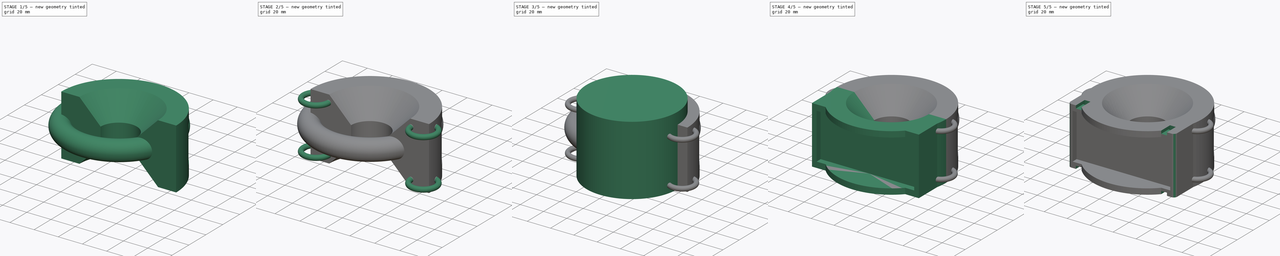
[diagram: build sequence overview — one tinted view per stage of 5, left to right]
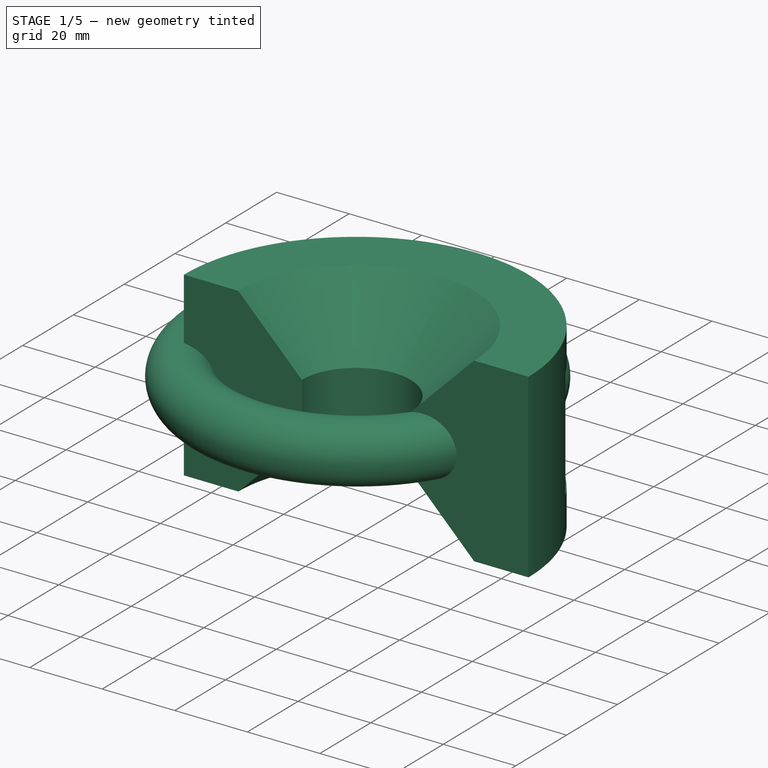
[diagram: stage 1 of 5 — iso view after this stage's code; geometry added in this stage tinted green]
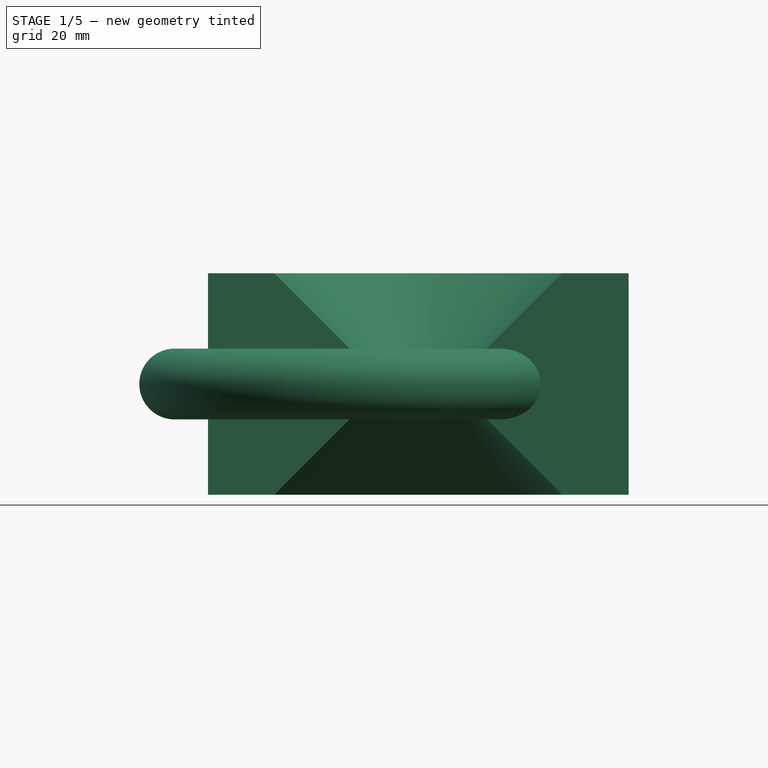
[diagram: stage 1 of 5 — front view after this stage's code; geometry added in this stage tinted green]
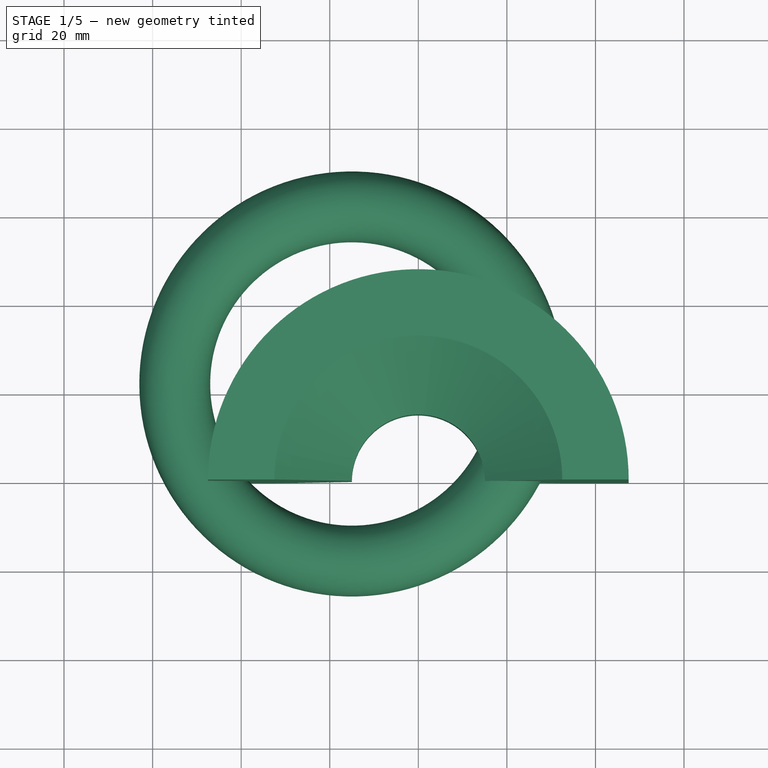
[diagram: stage 1 of 5 — top view after this stage's code; geometry added in this stage tinted green]
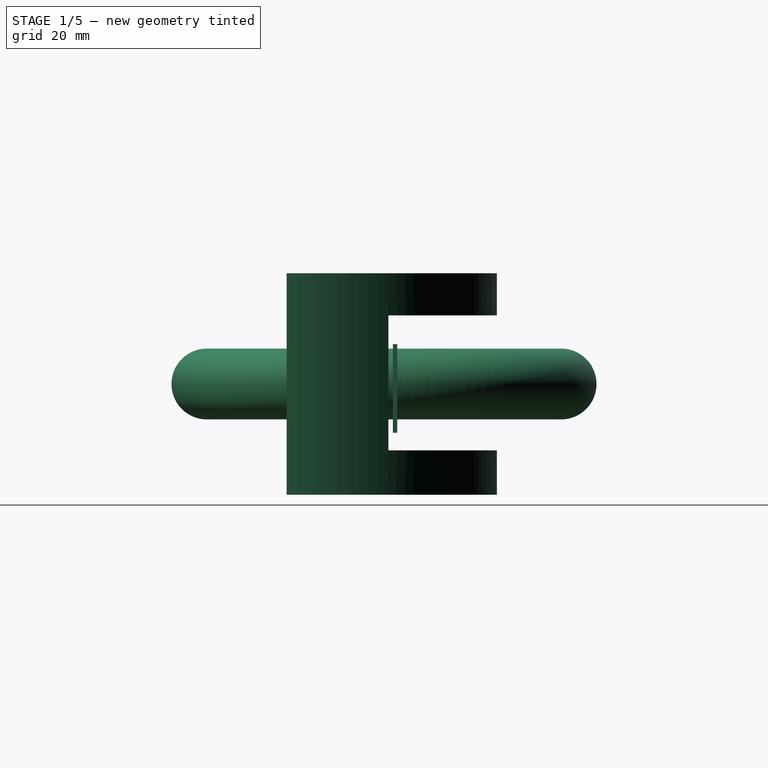
[diagram: stage 1 of 5 — right view after this stage's code; geometry added in this stage tinted green]
FCSTD DOCUMENT  (FreeCAD 0.16R6692 (Git))
Label: sujeccionV2
License: All rights reserved
LicenseURL: http://en.wikipedia.org/wiki/All_rights_reserved
objects: Sketcher::SketchObject×11, Part::Extrusion×6, Part::Cut×5, Part::Feature×3, Part::MultiFuse×3, Part::Torus×3, PartDesign::Revolution×2, PartDesign::Fillet×2, App::DocumentObjectGroup×2, PartDesign::Pad×1, Part::FeaturePython×1, Part::Box×1
note: 41 computed .brp shape members not serialized (recipe doc carries the construction recipe); baked Part::Feature solids carry a one-line shape summary decoded from their .brp

FEATURE [Sketcher::SketchObject] Sketch001
  Placement = pos=(0,0,0) rot=(1,0,0;1.5708rad)
  sketch-geometry (7):
    g0: LineSegment StartX=32.5 StartY=50 StartZ=0 EndX=15 EndY=32.5 EndZ=0
    g1: LineSegment StartX=15 StartY=32.5 StartZ=0 EndX=15 EndY=17.5 EndZ=0
    g2: LineSegment StartX=15 StartY=17.5 StartZ=0 EndX=32.5 EndY=0 EndZ=0
    g3: LineSegment StartX=32.5 StartY=0 StartZ=0 EndX=47.5 EndY=0 EndZ=0
    g4: LineSegment StartX=47.5 StartY=0 StartZ=0 EndX=47.5 EndY=50 EndZ=0
    g5: LineSegment StartX=47.5 StartY=50 StartZ=0 EndX=32.5 EndY=50 EndZ=0
    g6: LineSegment [constr] StartX=32.5 StartY=50 StartZ=0 EndX=32.5 EndY=0 EndZ=0
  constraints (20):
    c: Coincident(g0,g1)
    c: Vertical(g1)
    c: Coincident(g1,g2)
    c: Coincident(g2,g3)
    c: Horizontal(g3)
    c: Coincident(g3,g4)
    c: Vertical(g4)
    c: Coincident(g4,g5)
    c: Coincident(g5,g0)
    c: Horizontal(g5)
    c: Coincident(g6,g0)
    c: Coincident(g6,g2)
    c: Vertical(g6)
    c: Equal(g2,g0)
    c: PointOnObject(g3,g-1)
    c: Angle(g-1,g2) = 2.35619
    c: DistanceX(g-2,g1) = 15
    c: Distance(g1) = 15
    c: Distance(g4) = 50
    c: Distance(g5) = 15
FEATURE [Sketcher::SketchObject] Sketch002
  Placement = pos=(0,0,0) rot=(1,0,0;1.5708rad)
  sketch-geometry (7):
    g0: LineSegment StartX=32.5 StartY=50 StartZ=0 EndX=15 EndY=32.5 EndZ=0
    g1: LineSegment StartX=15 StartY=32.5 StartZ=0 EndX=15 EndY=17.5 EndZ=0
    g2: LineSegment StartX=15 StartY=17.5 StartZ=0 EndX=32.5 EndY=0 EndZ=0
    g3: LineSegment StartX=32.5 StartY=0 StartZ=0 EndX=47.5 EndY=0 EndZ=0
    g4: LineSegment StartX=47.5 StartY=0 StartZ=0 EndX=47.5 EndY=50 EndZ=0
    g5: LineSegment StartX=47.5 StartY=50 StartZ=0 EndX=32.5 EndY=50 EndZ=0
    g6: LineSegment [constr] StartX=32.5 StartY=50 StartZ=0 EndX=32.5 EndY=0 EndZ=0
  constraints (20):
    c: Coincident(g0,g1)
    c: Vertical(g1)
    c: Coincident(g1,g2)
    c: Coincident(g2,g3)
    c: Horizontal(g3)
    c: Coincident(g3,g4)
    c: Vertical(g4)
    c: Coincident(g4,g5)
    c: Coincident(g5,g0)
    c: Horizontal(g5)
    c: Coincident(g6,g0)
    c: Coincident(g6,g2)
    c: Vertical(g6)
    c: Equal(g2,g0)
    c: PointOnObject(g3,g-1)
    c: Angle(g-1,g2) = 2.35619
    c: DistanceX(g-2,g1) = 15
    c: Distance(g1) = 15
    c: Distance(g4) = 50
    c: Distance(g5) = 15
FEATURE [PartDesign::Revolution] Revolution001
  Angle = 180
  Axis = (0,0,1)
  Base = (0,0,0)
  Placement = pos=(0,0,0) rot=(1,0,0;1.5708rad)
  ReferenceAxis = -> Sketch002 [V_Axis]
  Sketch = -> Sketch002
FEATURE [App::DocumentObjectGroup] Group
  Group = -> [Fillet,Sketch001,Extrude,Cut001,Cut002,Cut003,Fillet001]
FEATURE [Sketcher::SketchObject] Sketch009
  ExternalGeometry = -> [Solid]
  Placement = pos=(22,23,10) rot=(-0.57735,0.57735,0.57735;2.0944rad)
  Support = -> Solid [Face147]
  sketch-geometry (6):
    g0: LineSegment StartX=0 StartY=120.593 StartZ=0 EndX=-30.5 EndY=120.593 EndZ=0
    g1: LineSegment StartX=-30.5 StartY=120.593 StartZ=0 EndX=-30.5 EndY=-66.5926 EndZ=0
    g2: LineSegment StartX=-30.5 StartY=-66.5926 StartZ=0 EndX=0 EndY=-66.5926 EndZ=0
    g3: LineSegment StartX=0 StartY=-66.5926 StartZ=0 EndX=0 EndY=120.593 EndZ=0
    g4: LineSegment [constr] StartX=0 StartY=-66.5926 StartZ=0 EndX=-30.5 EndY=4 EndZ=0
    g5: LineSegment [constr] StartX=0 StartY=120.593 StartZ=0 EndX=-30.5 EndY=50 EndZ=0
  constraints (15):
    c: Coincident(g0,g1)
    c: Coincident(g1,g2)
    c: Coincident(g2,g3)
    c: Coincident(g3,g0)
    c: Horizontal(g0)
    c: Horizontal(g2)
    c: Vertical(g1)
    c: Vertical(g3)
    c: PointOnObject(g-4,g1)
    c: PointOnObject(g-3,g3)
    c: Coincident(g4,g2)
    c: Coincident(g4,g-4)
    c: Coincident(g5,g0)
    c: Coincident(g5,g-4)
    c: Equal(g5,g4)
FEATURE [Part::Extrusion] Extrude005
  Base = -> Sketch009
  Dir = (0,40,0)
  Solid = true
FEATURE [Part::Cut] Cut004
  Base = -> Revolution001
  Tool = -> Extrude005
FEATURE [Part::Torus] Torus002
  Angle1 = -180
  Angle2 = 180
  Angle3 = 360
  Placement = pos=(-15,22,25) rot=(0,0,1;0rad)
  Radius1 = 40
  Radius2 = 8
FEATURE [Part::Box] Box  label="Cube"
  Height = 20
  Length = 16
  Placement = pos=(23,24,14) rot=(0,0,1;0rad)
  Width = 1
FEATURE [Sketcher::SketchObject] Sketch010
  ExternalGeometry = -> [Cut004]
  Placement = pos=(0,23,0) rot=(0,0.707107,0.707107;3.14159rad)
  Support = -> Cut004 [Face10]
  sketch-geometry (8):
    g0: Circle [constr] CenterX=38.3102 CenterY=37.25 CenterZ=0 NormalX=0 NormalY=0 NormalZ=1 Radius=3.25
    g1: Circle [constr] CenterX=-38.3102 CenterY=13.25 CenterZ=0 NormalX=0 NormalY=0 NormalZ=1 Radius=3.25
    g2: Circle [constr] CenterX=-38.3102 CenterY=37.25 CenterZ=0 NormalX=0 NormalY=0 NormalZ=1 Radius=3.25
    g3: Circle [constr] CenterX=38.3102 CenterY=13.25 CenterZ=0 NormalX=0 NormalY=0 NormalZ=1 Radius=3.25
    g4: LineSegment [constr] StartX=-38.3102 StartY=37.25 StartZ=0 EndX=38.3102 EndY=37.25 EndZ=0
    g5: LineSegment [constr] StartX=38.3102 StartY=37.25 StartZ=0 EndX=38.3102 EndY=13.25 EndZ=0
    g6: LineSegment [constr] StartX=38.3102 StartY=13.25 StartZ=0 EndX=-38.3102 EndY=13.25 EndZ=0
    g7: LineSegment [constr] StartX=-38.3102 StartY=13.25 StartZ=0 EndX=-38.3102 EndY=37.25 EndZ=0
  constraints (20):
    c: Coincident(g4,g5)
    c: Coincident(g5,g6)
    c: Coincident(g6,g7)
    c: Coincident(g7,g4)
    c: Horizontal(g4)
    c: Horizontal(g6)
    c: Vertical(g5)
    c: Vertical(g7)
    c: Coincident(g4,g2)
    c: Coincident(g5,g3)
    c: Coincident(g0,g4)
    c: Coincident(g1,g6)
    c: Radius(g2) = 3.25
    c: Equal(g2,g1)
    c: Equal(g2,g0)
    c: Equal(g2,g3)
    c: Tangent(g2,g-5)
    c: Tangent(g2,g-3)
    c: Tangent(g3,g-4)
    c: Tangent(g3,g-6)
FEATURE [App::DocumentObjectGroup] Group001
  Group = -> [Cut004,Sketch010]
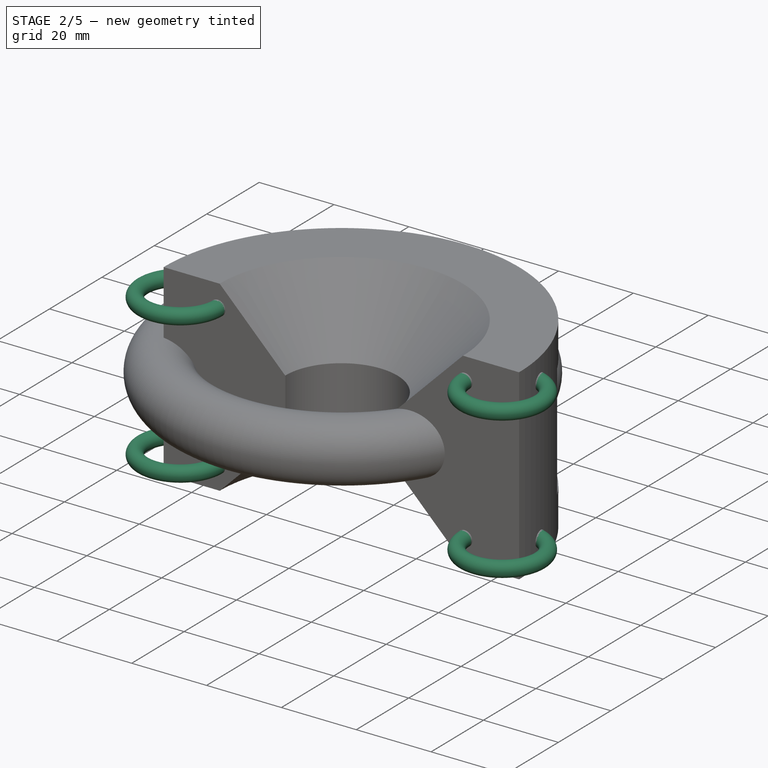
[diagram: stage 2 of 5 — iso view after this stage's code; geometry added in this stage tinted green]
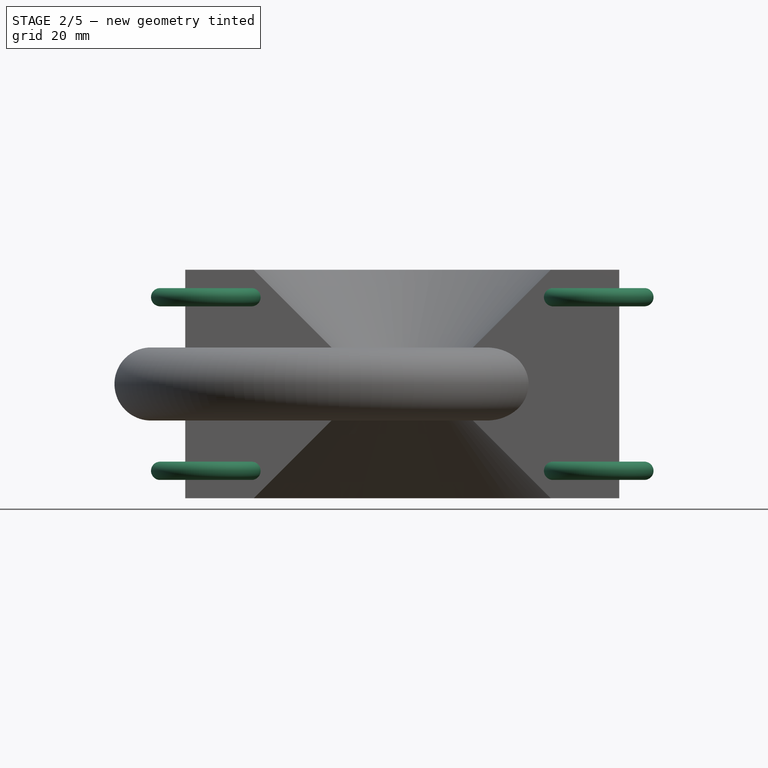
[diagram: stage 2 of 5 — front view after this stage's code; geometry added in this stage tinted green]
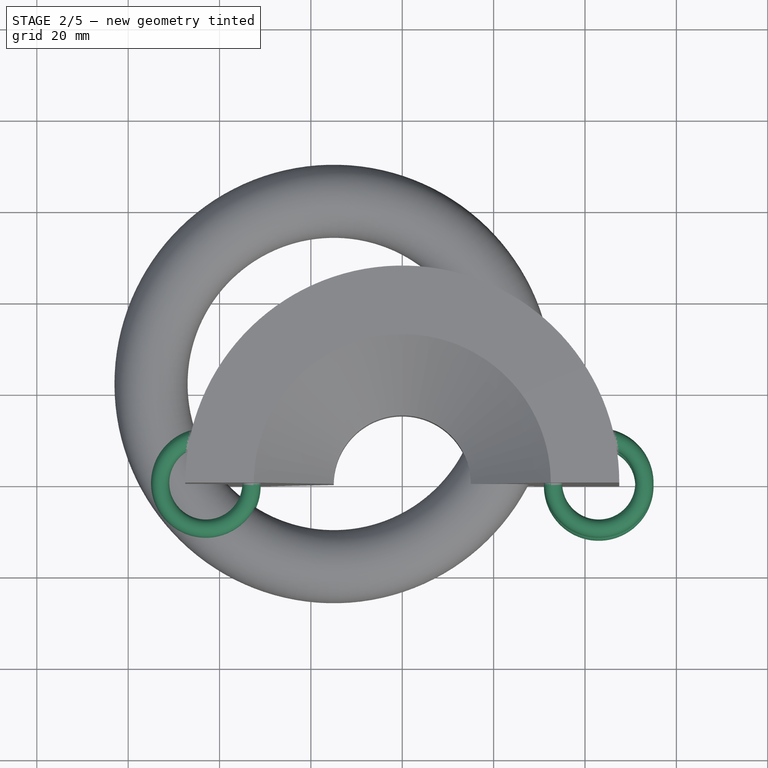
[diagram: stage 2 of 5 — top view after this stage's code; geometry added in this stage tinted green]
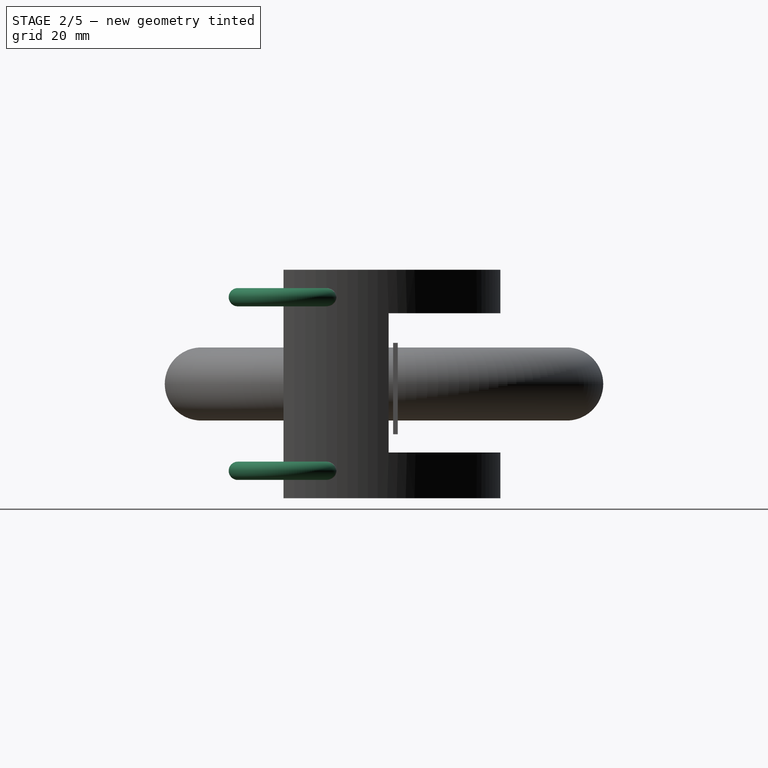
[diagram: stage 2 of 5 — right view after this stage's code; geometry added in this stage tinted green]
FEATURE [Part::Torus] Torus
  Angle1 = -180
  Angle2 = 180
  Angle3 = 360
  Placement = pos=(-43,0,6) rot=(0,0,1;0rad)
  Radius1 = 10
  Radius2 = 2
FEATURE [Part::Torus] Torus001
  Angle1 = -180
  Angle2 = 180
  Angle3 = 360
  Placement = pos=(-43,0,44) rot=(0,0,1;0rad)
  Radius1 = 10
  Radius2 = 2
FEATURE [Part::MultiFuse] Fusion001
  Shapes = -> [Torus,Torus001]
FEATURE [Part::FeaturePython] Clone  label="Clone of Fusion001"  # Draft clone (typed FeaturePython)
  Objects = -> [Fusion001]
  Placement = pos=(86,0,0) rot=(0,0,1;0rad)
  Scale = (1,1,1)
FEATURE [Part::MultiFuse] Fusion002
  Shapes = -> [Clone,Fusion001]
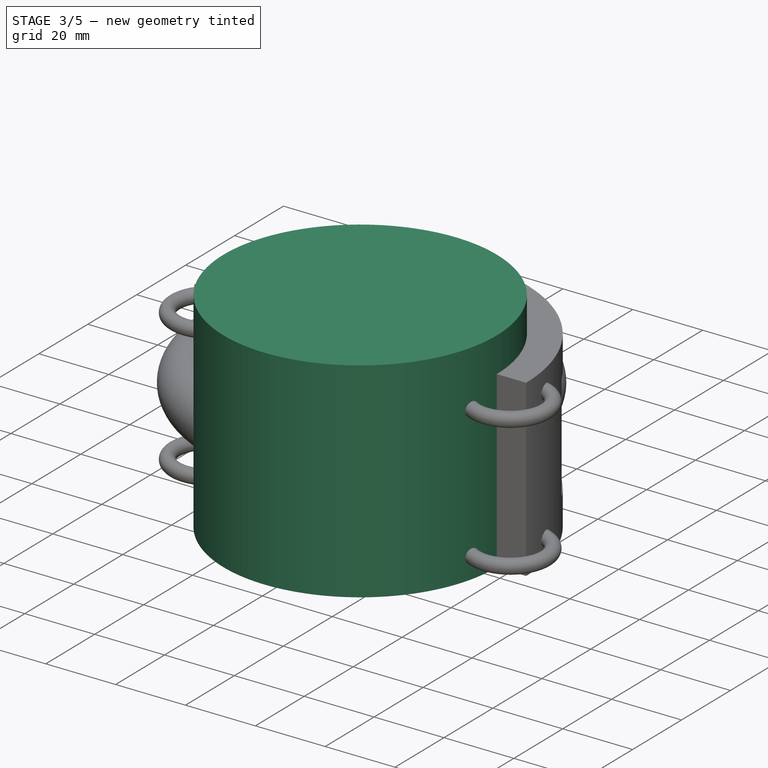
[diagram: stage 3 of 5 — iso view after this stage's code; geometry added in this stage tinted green]
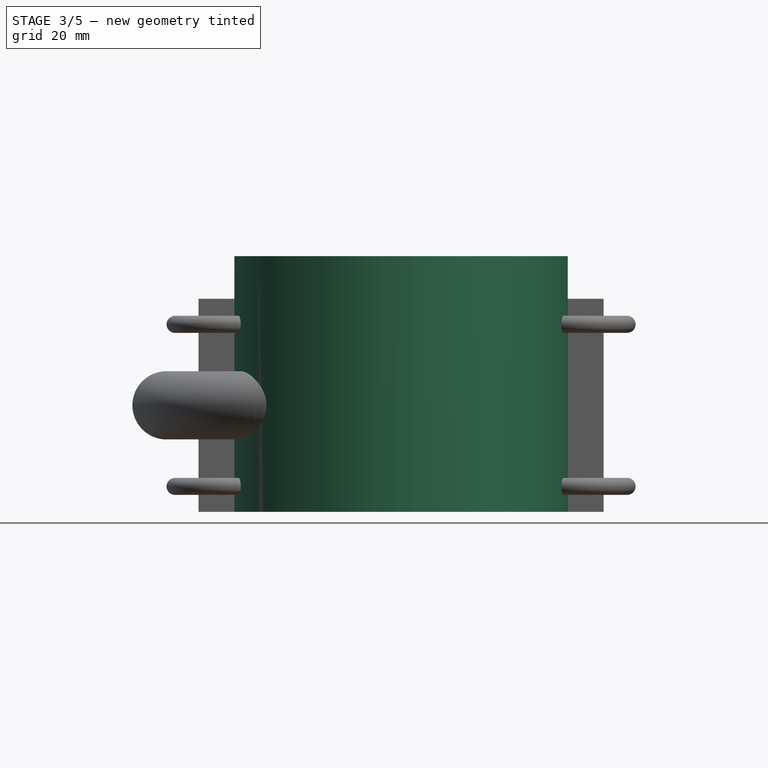
[diagram: stage 3 of 5 — front view after this stage's code; geometry added in this stage tinted green]
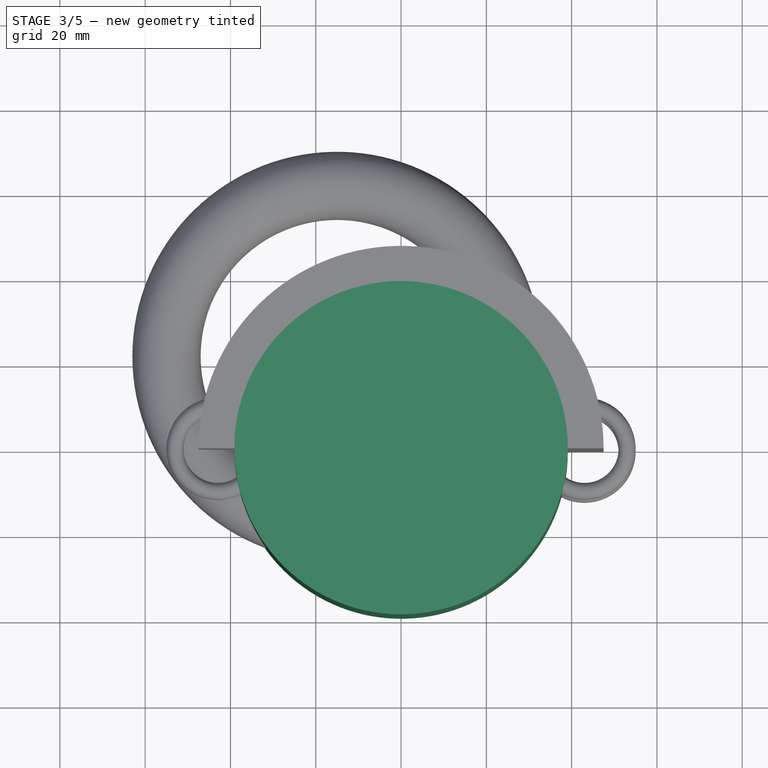
[diagram: stage 3 of 5 — top view after this stage's code; geometry added in this stage tinted green]
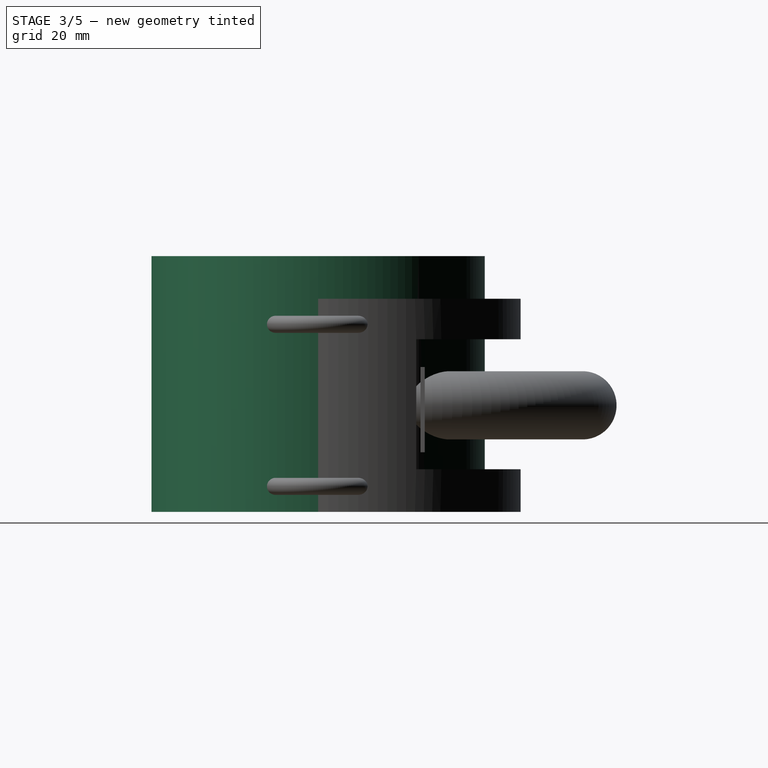
[diagram: stage 3 of 5 — right view after this stage's code; geometry added in this stage tinted green]
FEATURE [Part::Feature] Solid  label="ESP-Holder"
  Placement = pos=(22,23,10) rot=(0,1,0;4.71239rad)
  shape: bbox 54 x 8 x 30.5 mm, 488 faces (baked)
FEATURE [PartDesign::Fillet] Fillet  label="Powerbank"
  Placement = pos=(-42.5,-49,45) rot=(0,1,0;1.5708rad)
  Radius = 3
FEATURE [Sketcher::SketchObject] Sketch003
  ExternalGeometry = -> [Fillet]
  Placement = pos=(-42.5,-27.5,45) rot=(0.57735,0.57735,0.57735;4.18879rad)
  Support = -> Fillet [Face7]
  sketch-geometry (17):
    g0: LineSegment [constr] StartX=-40 StartY=64 StartZ=0 EndX=0 EndY=64 EndZ=0
    g1: LineSegment StartX=0 StartY=64 StartZ=0 EndX=5 EndY=64 EndZ=0
    g2: LineSegment StartX=5 StartY=64 StartZ=0 EndX=5 EndY=89 EndZ=0
    g3: LineSegment StartX=5 StartY=89 StartZ=0 EndX=-45 EndY=89 EndZ=0
    g4: LineSegment StartX=-45 StartY=89 StartZ=0 EndX=-45 EndY=64 EndZ=0
    g5: LineSegment StartX=-45 StartY=64 StartZ=0 EndX=-40 EndY=64 EndZ=0
    g6: LineSegment StartX=-40 StartY=64 StartZ=0 EndX=-40 EndY=85 EndZ=0
    g7: LineSegment StartX=-40 StartY=85 StartZ=0 EndX=0 EndY=85 EndZ=0
    g8: LineSegment StartX=0 StartY=85 StartZ=0 EndX=0 EndY=64 EndZ=0
    g9: LineSegment StartX=0 StartY=21 StartZ=0 EndX=5 EndY=21 EndZ=0
    g10: LineSegment StartX=5 StartY=21 StartZ=0 EndX=5 EndY=-4 EndZ=0
    g11: LineSegment StartX=5 StartY=-4 StartZ=0 EndX=-45 EndY=-4 EndZ=0
    g12: LineSegment StartX=-45 StartY=-4 StartZ=0 EndX=-45 EndY=21 EndZ=0
    g13: LineSegment StartX=-45 StartY=21 StartZ=0 EndX=-40 EndY=21 EndZ=0
    g14: LineSegment StartX=-40 StartY=21 StartZ=0 EndX=-40 EndY=0 EndZ=0
    g15: LineSegment StartX=-40 StartY=0 StartZ=0 EndX=0 EndY=0 EndZ=0
    g16: LineSegment StartX=0 StartY=0 StartZ=0 EndX=0 EndY=21 EndZ=0
  constraints (46):
    c: Horizontal(g0)
    c: Coincident(g0,g1)
    c: Horizontal(g1)
    c: Coincident(g1,g2)
    c: Vertical(g2)
    c: Coincident(g2,g3)
    c: Horizontal(g3)
    c: Coincident(g3,g4)
    c: Vertical(g4)
    c: Coincident(g4,g5)
    c: Coincident(g5,g0)
    c: Coincident(g0,g6)
    c: Coincident(g6,g7)
    c: Coincident(g7,g8)
    c: Coincident(g8,g0)
    c: Horizontal(g5)
    c: Equal(g5,g1)
    c: Horizontal(g9)
    c: Coincident(g9,g10)
    c: Vertical(g10)
    c: Coincident(g10,g11)
    c: Horizontal(g11)
    c: Coincident(g11,g12)
    c: Vertical(g12)
    c: Coincident(g12,g13)
    c: Horizontal(g13)
    c: Coincident(g13,g14)
    c: Vertical(g14)
    c: Coincident(g14,g15)
    c: Coincident(g15,g-1)
    c: Coincident(g15,g16)
    c: Coincident(g16,g9)
    c: Vertical(g16)
    c: Equal(g13,g9)
    c: Equal(g2,g10)
    c: Equal(g8,g16)
    c: Coincident(g14,g-7)
    c: Coincident(g6,g-5)
    c: Coincident(g7,g-6)
    c: Equal(g14,g16)
    c: Equal(g3,g11)
    c: PointOnObject(g0,g-5)
    c: PointOnObject(g0,g-6)
    c: Distance(g-4,g11) = 4
    c: Distance(g11) = 50
    c: Distance(g10) = 25
FEATURE [Part::Extrusion] Extrude
  Base = -> Sketch003
  Dir = (0,-5,0)
  Solid = true
FEATURE [Sketcher::SketchObject] Sketch004
  ExternalGeometry = -> [Extrude]
  Placement = pos=(0,-27.5,0) rot=(0,0.707107,0.707107;3.14159rad)
  Support = -> Extrude [Face9]
  sketch-geometry (4):
    g0: LineSegment StartX=46.5 StartY=50 StartZ=0 EndX=-46.5 EndY=50 EndZ=0
    g1: LineSegment StartX=-46.5 StartY=50 StartZ=0 EndX=-46.5 EndY=0 EndZ=0
    g2: LineSegment StartX=-46.5 StartY=0 StartZ=0 EndX=46.5 EndY=0 EndZ=0
    g3: LineSegment StartX=46.5 StartY=0 StartZ=0 EndX=46.5 EndY=50 EndZ=0
  constraints (10):
    c: Coincident(g0,g1)
    c: Coincident(g1,g2)
    c: Coincident(g2,g3)
    c: Coincident(g3,g0)
    c: Horizontal(g0)
    c: Horizontal(g2)
    c: Vertical(g1)
    c: Vertical(g3)
    c: Coincident(g0,g-4)
    c: Coincident(g1,g-3)
FEATURE [PartDesign::Pad] Pad
  Length = 20
  Length2 = 100
  Sketch = -> Sketch004
  Type = 0
FEATURE [Sketcher::SketchObject] Sketch005
  Placement = pos=(0,0,0) rot=(1,0,0;3.14159rad)
  Support = -> Pad [Face17]
  sketch-geometry (1):
    g0: Circle CenterX=0 CenterY=0 CenterZ=0 NormalX=0 NormalY=0 NormalZ=1 Radius=39.0952
  constraints (1):
    c: Coincident(g0,g-1)
FEATURE [Part::Extrusion] Extrude001
  Base = -> Sketch005
  Dir = (0,0,60)
  Solid = true
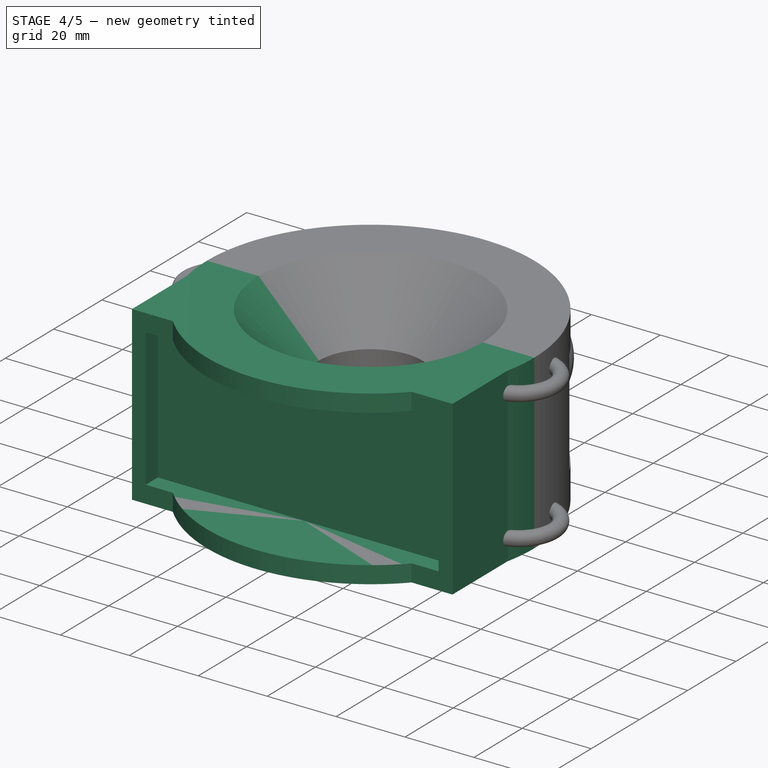
[diagram: stage 4 of 5 — iso view after this stage's code; geometry added in this stage tinted green]
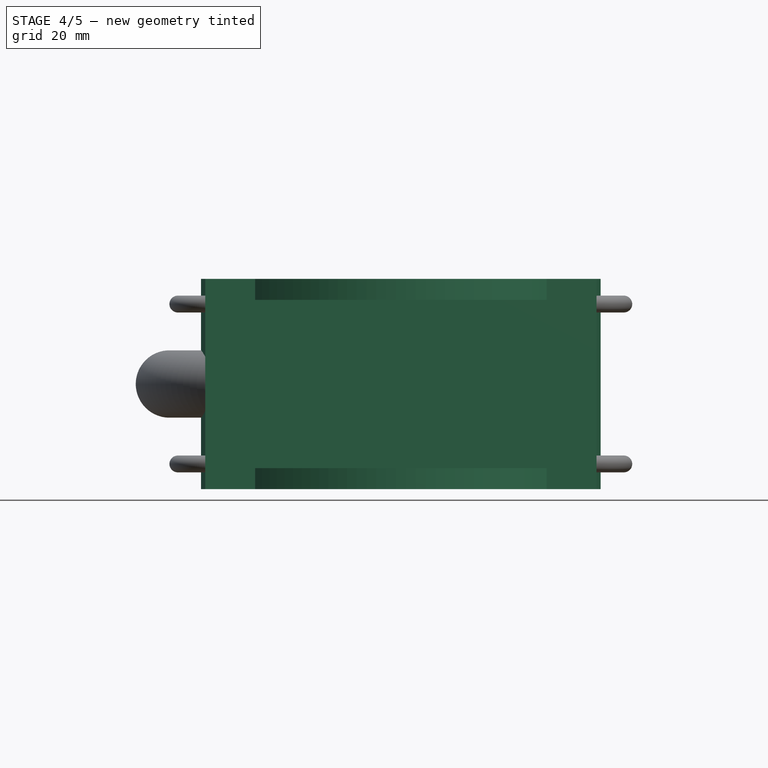
[diagram: stage 4 of 5 — front view after this stage's code; geometry added in this stage tinted green]
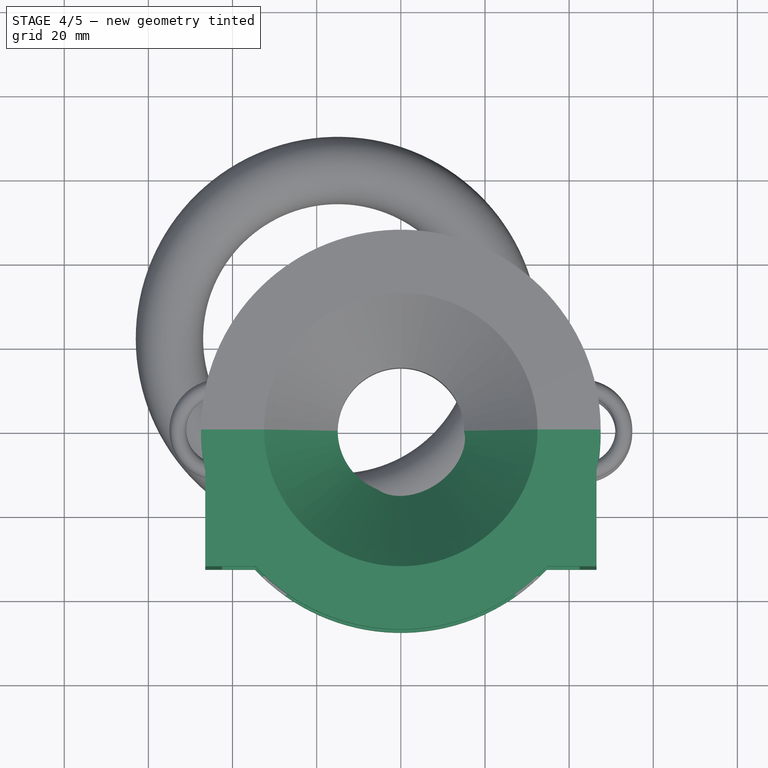
[diagram: stage 4 of 5 — top view after this stage's code; geometry added in this stage tinted green]
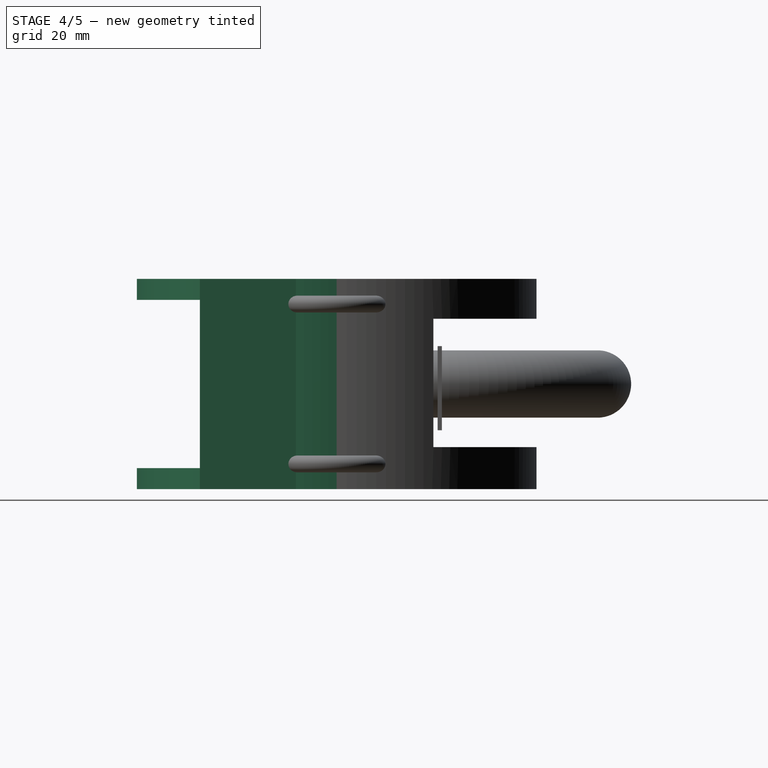
[diagram: stage 4 of 5 — right view after this stage's code; geometry added in this stage tinted green]
FEATURE [Sketcher::SketchObject] Sketch
  Placement = pos=(0,0,0) rot=(1,0,0;1.5708rad)
  sketch-geometry (7):
    g0: LineSegment StartX=32.5 StartY=50 StartZ=0 EndX=15 EndY=32.5 EndZ=0
    g1: LineSegment StartX=15 StartY=32.5 StartZ=0 EndX=15 EndY=17.5 EndZ=0
    g2: LineSegment StartX=15 StartY=17.5 StartZ=0 EndX=32.5 EndY=0 EndZ=0
    g3: LineSegment StartX=32.5 StartY=0 StartZ=0 EndX=47.5 EndY=0 EndZ=0
    g4: LineSegment StartX=47.5 StartY=0 StartZ=0 EndX=47.5 EndY=50 EndZ=0
    g5: LineSegment StartX=47.5 StartY=50 StartZ=0 EndX=32.5 EndY=50 EndZ=0
    g6: LineSegment [constr] StartX=32.5 StartY=50 StartZ=0 EndX=32.5 EndY=0 EndZ=0
  constraints (20):
    c: Coincident(g0,g1)
    c: Vertical(g1)
    c: Coincident(g1,g2)
    c: Coincident(g2,g3)
    c: Horizontal(g3)
    c: Coincident(g3,g4)
    c: Vertical(g4)
    c: Coincident(g4,g5)
    c: Coincident(g5,g0)
    c: Horizontal(g5)
    c: Coincident(g6,g0)
    c: Coincident(g6,g2)
    c: Vertical(g6)
    c: Equal(g2,g0)
    c: PointOnObject(g3,g-1)
    c: Angle(g-1,g2) = 2.35619
    c: DistanceX(g-2,g1) = 15
    c: Distance(g1) = 15
    c: Distance(g4) = 50
    c: Distance(g5) = 15
FEATURE [PartDesign::Revolution] Revolution
  Angle = 180
  Axis = (0,0,1)
  Base = (0,0,0)
  Placement = pos=(0,0,0) rot=(1,0,0;1.5708rad)
  ReferenceAxis = -> Sketch [V_Axis]
  Reversed = true
  Sketch = -> Sketch
FEATURE [Part::Cut] Cut
  Base = -> Pad
  Tool = -> Extrude001
FEATURE [Part::MultiFuse] Fusion
  Shapes = -> [Revolution,Cut]
FEATURE [Sketcher::SketchObject] Sketch006
  ExternalGeometry = -> [Fusion]
  Placement = pos=(0,-27.5,0) rot=(1,0,0;1.5708rad)
  Support = -> Fusion [Face16]
  sketch-geometry (4):
    g0: LineSegment StartX=42.5 StartY=45 StartZ=0 EndX=-42.5 EndY=45 EndZ=0
    g1: LineSegment StartX=-42.5 StartY=45 StartZ=0 EndX=-42.5 EndY=5 EndZ=0
    g2: LineSegment StartX=-42.5 StartY=5 StartZ=0 EndX=42.5 EndY=5 EndZ=0
    g3: LineSegment StartX=42.5 StartY=5 StartZ=0 EndX=42.5 EndY=45 EndZ=0
  constraints (10):
    c: Coincident(g0,g1)
    c: Coincident(g1,g2)
    c: Coincident(g2,g3)
    c: Coincident(g3,g0)
    c: Horizontal(g0)
    c: Horizontal(g2)
    c: Vertical(g1)
    c: Vertical(g3)
    c: Coincident(g0,g-4)
    c: Coincident(g1,g-3)
FEATURE [Part::Extrusion] Extrude002
  Base = -> Sketch006
  Dir = (0,-80,0)
  Solid = true
FEATURE [Part::Cut] Cut001
  Base = -> Fusion
  Tool = -> Extrude002
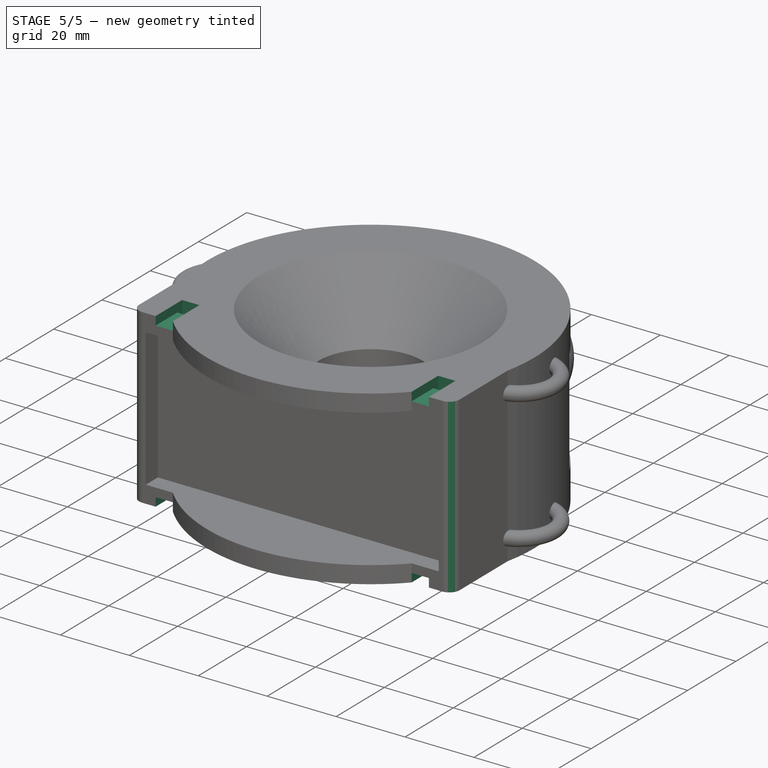
[diagram: stage 5 of 5 — iso view after this stage's code; geometry added in this stage tinted green]
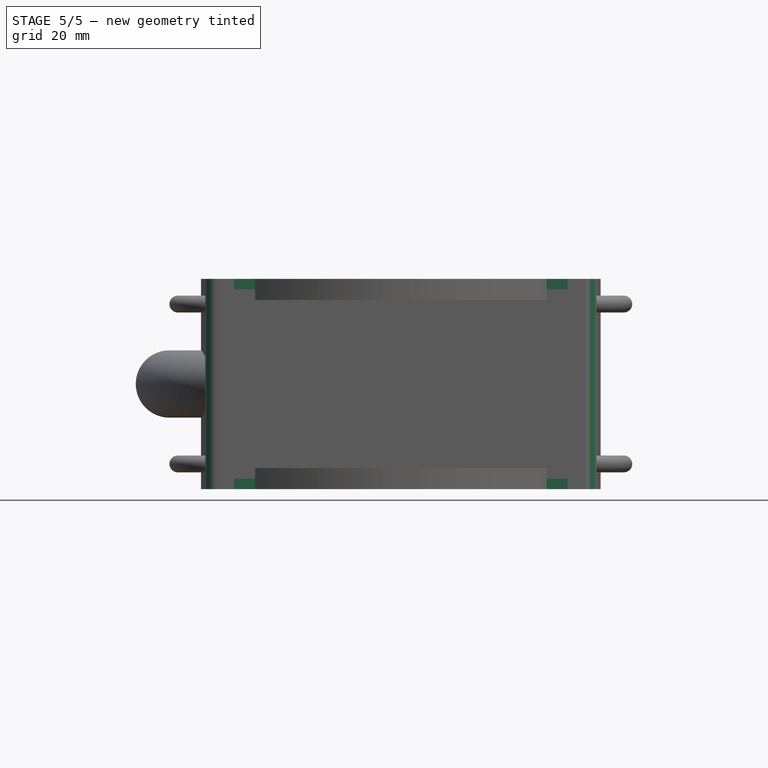
[diagram: stage 5 of 5 — front view after this stage's code; geometry added in this stage tinted green]
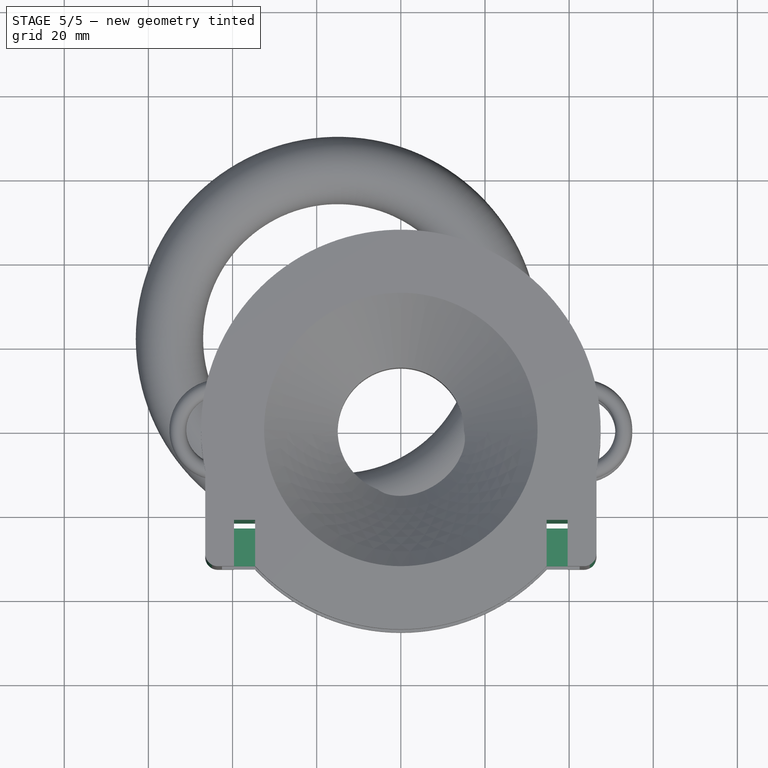
[diagram: stage 5 of 5 — top view after this stage's code; geometry added in this stage tinted green]
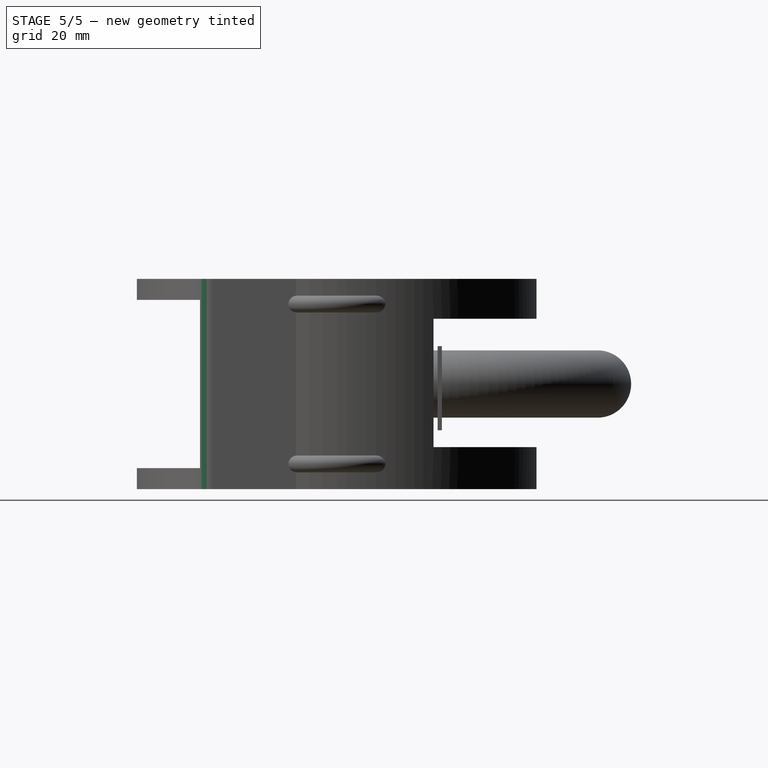
[diagram: stage 5 of 5 — right view after this stage's code; geometry added in this stage tinted green]
FEATURE [Sketcher::SketchObject] Sketch007
  ExternalGeometry = -> [Cut001]
  Placement = pos=(0,0,0) rot=(1,0,0;3.14159rad)
  Support = -> Cut001 [Face14]
  sketch-geometry (10):
    g0: LineSegment [constr] StartX=-34.641 StartY=32.5 StartZ=0 EndX=-34.641 EndY=23.5 EndZ=0
    g1: LineSegment [constr] StartX=34.641 StartY=32.5 StartZ=0 EndX=34.641 EndY=23.5 EndZ=0
    g2: LineSegment StartX=-34.641 StartY=23.5 StartZ=0 EndX=-39.641 EndY=23.5 EndZ=0
    g3: LineSegment StartX=-39.641 StartY=23.5 StartZ=0 EndX=-39.641 EndY=21.5 EndZ=0
    g4: LineSegment StartX=-39.641 StartY=21.5 StartZ=0 EndX=-34.641 EndY=21.5 EndZ=0
    g5: LineSegment StartX=-34.641 StartY=21.5 StartZ=0 EndX=-34.641 EndY=23.5 EndZ=0
    g6: LineSegment StartX=34.641 StartY=23.5 StartZ=0 EndX=39.641 EndY=23.5 EndZ=0
    g7: LineSegment StartX=39.641 StartY=23.5 StartZ=0 EndX=39.641 EndY=21.5 EndZ=0
    g8: LineSegment StartX=39.641 StartY=21.5 StartZ=0 EndX=34.641 EndY=21.5 EndZ=0
    g9: LineSegment StartX=34.641 StartY=21.5 StartZ=0 EndX=34.641 EndY=23.5 EndZ=0
  constraints (28):
    c: Coincident(g0,g-5)
    c: Vertical(g0)
    c: Distance(g0,g-6) = 4
    c: Coincident(g1,g-7)
    c: Vertical(g1)
    c: Equal(g0,g1)
    c: Coincident(g2,g3)
    c: Coincident(g3,g4)
    c: Coincident(g4,g5)
    c: Coincident(g5,g2)
    c: Horizontal(g2)
    c: Horizontal(g4)
    c: Vertical(g3)
    c: Vertical(g5)
    c: Coincident(g2,g0)
    c: Coincident(g6,g7)
    c: Coincident(g7,g8)
    c: Coincident(g8,g9)
    c: Coincident(g9,g6)
    c: Horizontal(g6)
    c: Horizontal(g8)
    c: Vertical(g7)
    c: Vertical(g9)
    c: Coincident(g6,g1)
    c: Equal(g5,g7)
    c: Equal(g4,g8)
    c: Distance(g7) = 2
    c: Distance(g8) = 5
FEATURE [Part::Extrusion] Extrude003
  Base = -> Sketch007
  Dir = (0,0,50)
  Solid = true
FEATURE [Part::Feature] Cut001_solid  label="Cut001 (Solid)"
  shape: bbox 95 x 47.5 x 50 mm, 26 faces (baked)
FEATURE [Part::Cut] Cut002
  Base = -> Cut001_solid
  Tool = -> Extrude003
FEATURE [Sketcher::SketchObject] Sketch008
  ExternalGeometry = -> [Cut002]
  Placement = pos=(0,-32.5,0) rot=(1,0,0;1.5708rad)
  Support = -> Cut002 [Face8]
  sketch-geometry (16):
    g0: LineSegment StartX=-39.641 StartY=50 StartZ=0 EndX=-34.641 EndY=50 EndZ=0
    g1: LineSegment StartX=-34.641 StartY=50 StartZ=0 EndX=-34.641 EndY=47.5 EndZ=0
    g2: LineSegment StartX=-34.641 StartY=47.5 StartZ=0 EndX=-39.641 EndY=47.5 EndZ=0
    g3: LineSegment StartX=-39.641 StartY=47.5 StartZ=0 EndX=-39.641 EndY=50 EndZ=0
    g4: LineSegment StartX=34.641 StartY=50 StartZ=0 EndX=39.641 EndY=50 EndZ=0
    g5: LineSegment StartX=39.641 StartY=50 StartZ=0 EndX=39.641 EndY=47.5 EndZ=0
    g6: LineSegment StartX=39.641 StartY=47.5 StartZ=0 EndX=34.641 EndY=47.5 EndZ=0
    g7: LineSegment StartX=34.641 StartY=47.5 StartZ=0 EndX=34.641 EndY=50 EndZ=0
    g8: LineSegment StartX=34.641 StartY=0 StartZ=0 EndX=39.641 EndY=0 EndZ=0
    g9: LineSegment StartX=39.641 StartY=0 StartZ=0 EndX=39.641 EndY=2.5 EndZ=0
    g10: LineSegment StartX=39.641 StartY=2.5 StartZ=0 EndX=34.641 EndY=2.5 EndZ=0
    g11: LineSegment StartX=34.641 StartY=2.5 StartZ=0 EndX=34.641 EndY=0 EndZ=0
    g12: LineSegment StartX=-34.641 StartY=0 StartZ=0 EndX=-39.641 EndY=0 EndZ=0
    g13: LineSegment StartX=-39.641 StartY=0 StartZ=0 EndX=-39.641 EndY=2.5 EndZ=0
    g14: LineSegment StartX=-39.641 StartY=2.5 StartZ=0 EndX=-34.641 EndY=2.5 EndZ=0
    g15: LineSegment StartX=-34.641 StartY=2.5 StartZ=0 EndX=-34.641 EndY=0 EndZ=0
  constraints (44):
    c: Coincident(g0,g1)
    c: Coincident(g1,g2)
    c: Coincident(g2,g3)
    c: Coincident(g3,g0)
    c: Horizontal(g0)
    c: Horizontal(g2)
    c: Vertical(g1)
    c: Vertical(g3)
    c: Coincident(g0,g-3)
    c: Coincident(g4,g5)
    c: Coincident(g5,g6)
    c: Coincident(g6,g7)
    c: Coincident(g7,g4)
    c: Horizontal(g4)
    c: Horizontal(g6)
    c: Vertical(g5)
    c: Vertical(g7)
    c: Coincident(g4,g-4)
    c: Coincident(g8,g9)
    c: Coincident(g9,g10)
    c: Coincident(g10,g11)
    c: Coincident(g11,g8)
    c: Horizontal(g8)
    c: Horizontal(g10)
    c: Vertical(g9)
    c: Vertical(g11)
    c: Coincident(g8,g-6)
    c: Coincident(g12,g13)
    c: Coincident(g13,g14)
    c: Coincident(g14,g15)
    c: Coincident(g15,g12)
    c: Horizontal(g12)
    c: Horizontal(g14)
    c: Vertical(g13)
    c: Vertical(g15)
    c: Coincident(g12,g-5)
    c: Coincident(g12,g-5)
    c: Coincident(g8,g-6)
    c: Coincident(g0,g-3)
    c: Coincident(g4,g-4)
    c: Equal(g5,g9)
    c: Equal(g9,g13)
    c: Equal(g13,g3)
    c: Distance(g5) = 2.5
FEATURE [Part::Extrusion] Extrude004
  Base = -> Sketch008
  Dir = (0,9,0)
  Solid = true
FEATURE [Part::Feature] Solid001
  shape: bbox 95 x 47.5 x 50 mm, 945 faces (baked)
FEATURE [Part::Cut] Cut003
  Base = -> Solid001
  Tool = -> Extrude004
FEATURE [PartDesign::Fillet] Fillet001
  Base = -> Cut003 [Edge460,Edge372]
  Radius = 3
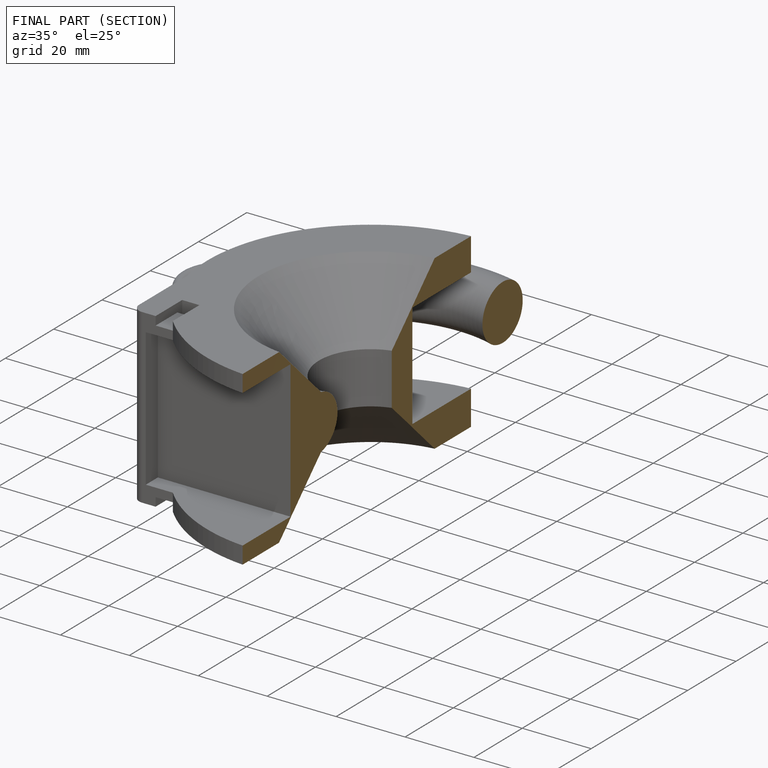
[diagram: finished part — half-section view (interior)]
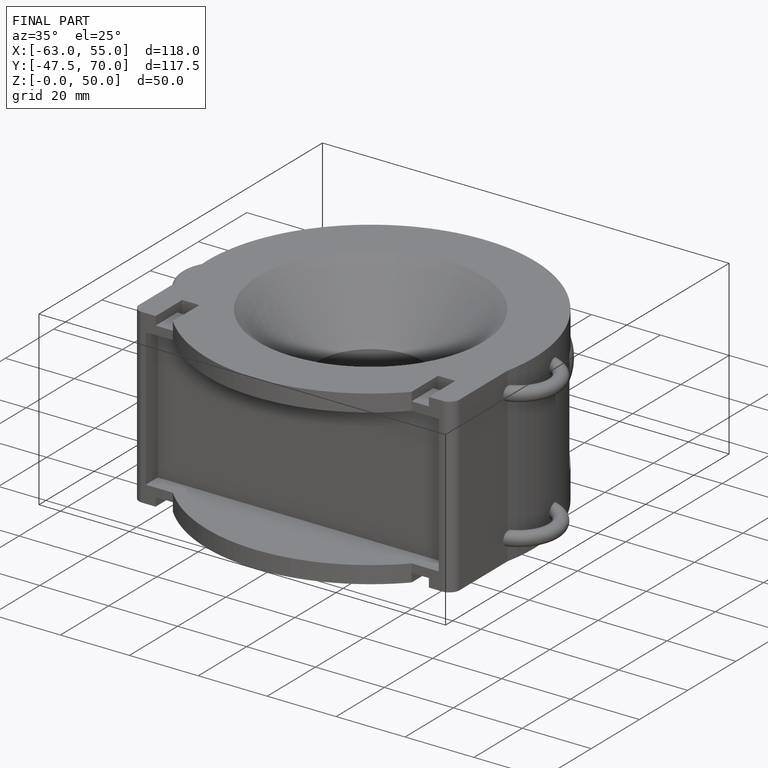
[diagram: finished part — iso view with bounding-box wireframe]
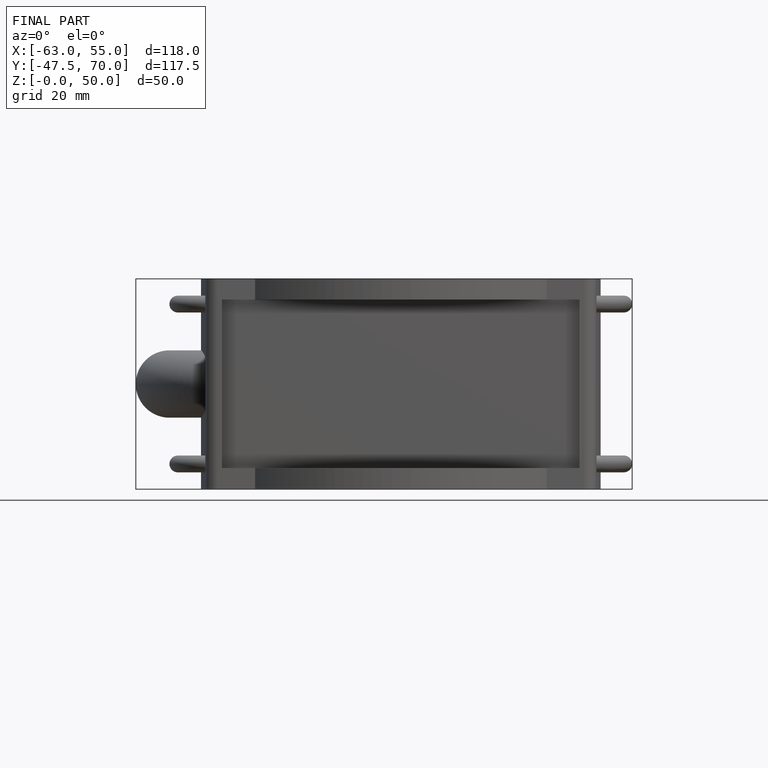
[diagram: finished part — front view with bounding-box wireframe]
